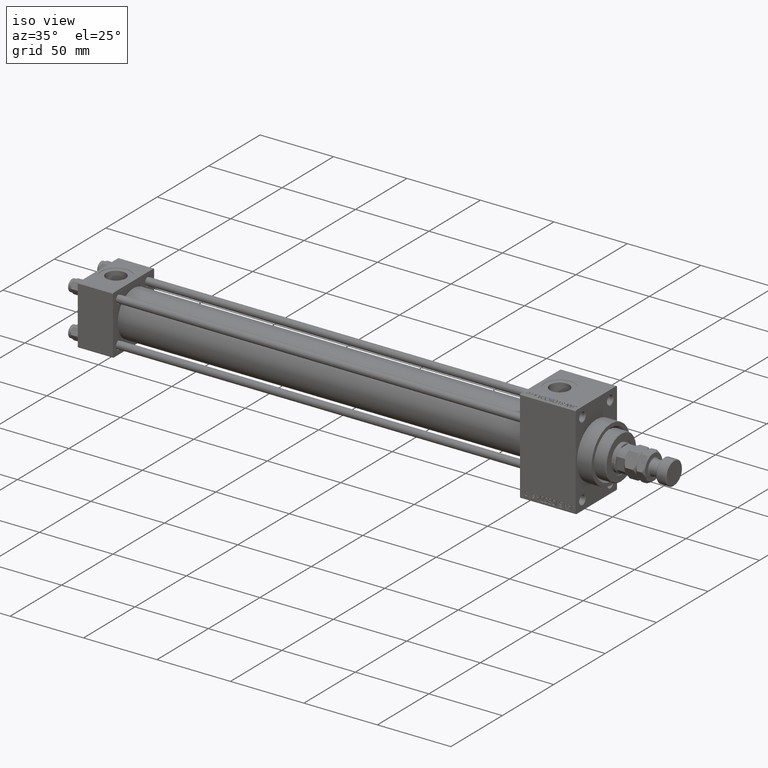
[diagram: clean part render]
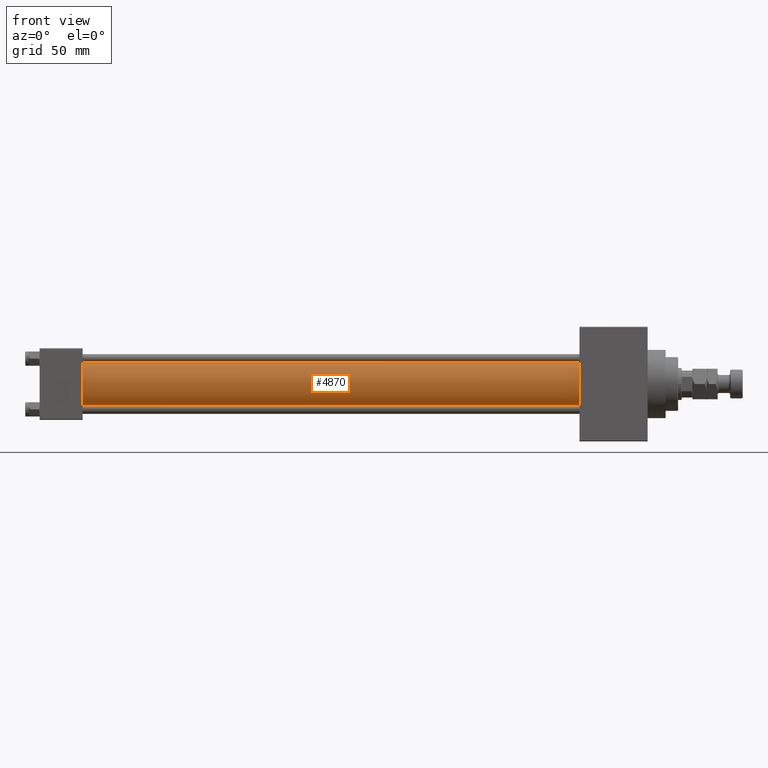
[diagram: tour spotlight — one face highlighted and labeled with its STEP entity id]
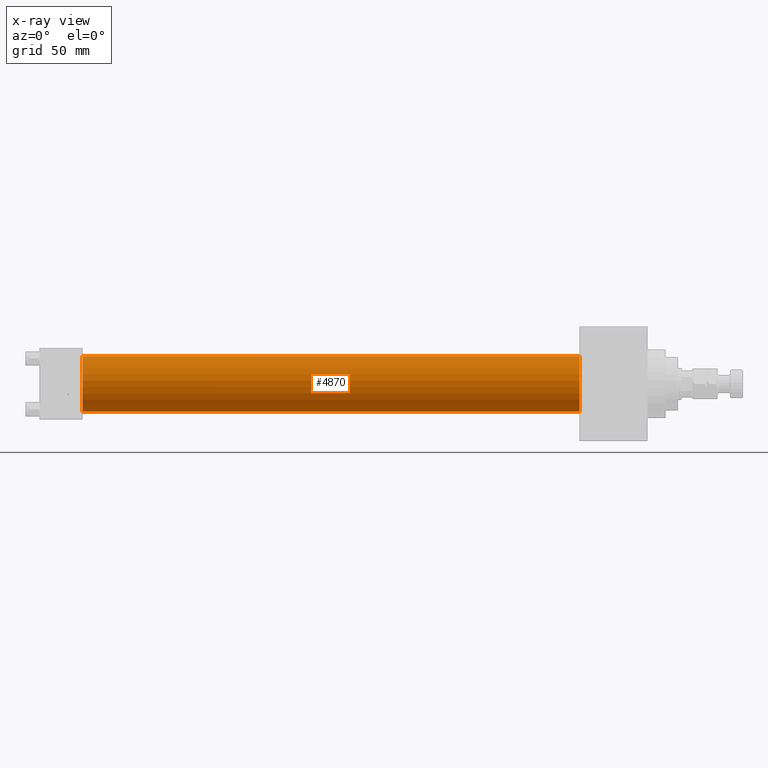
[diagram: x-ray of the same camera — body ghosted, this tour face saturated]
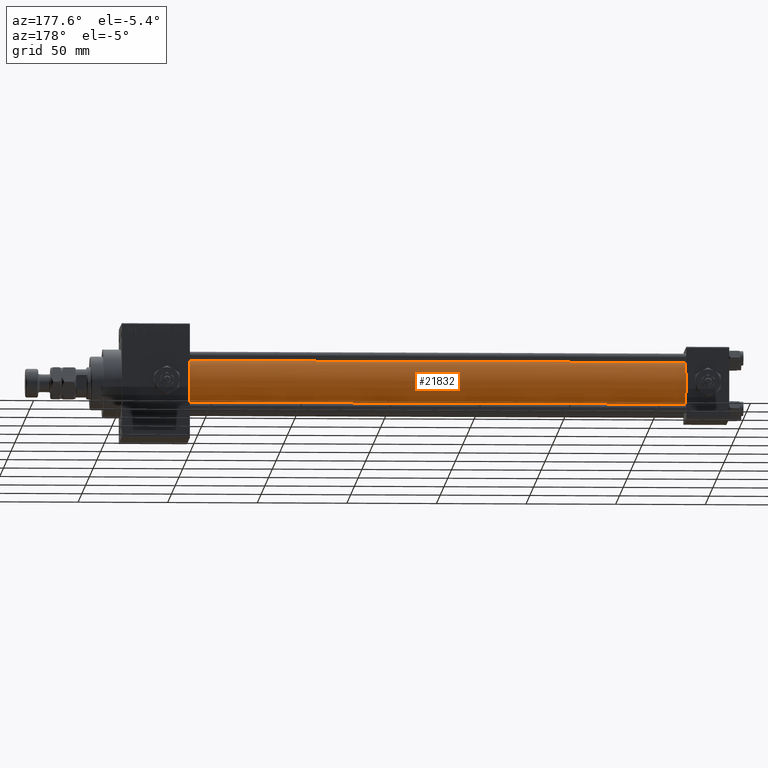
[diagram: tour spotlight — one face highlighted and labeled with its STEP entity id]
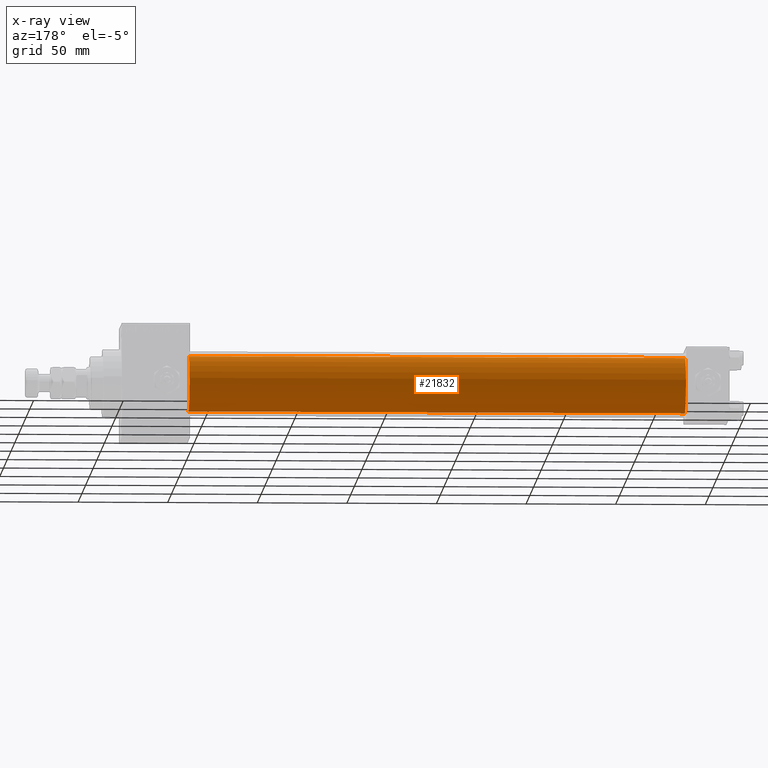
[diagram: x-ray of the same camera — body ghosted, this tour face saturated]
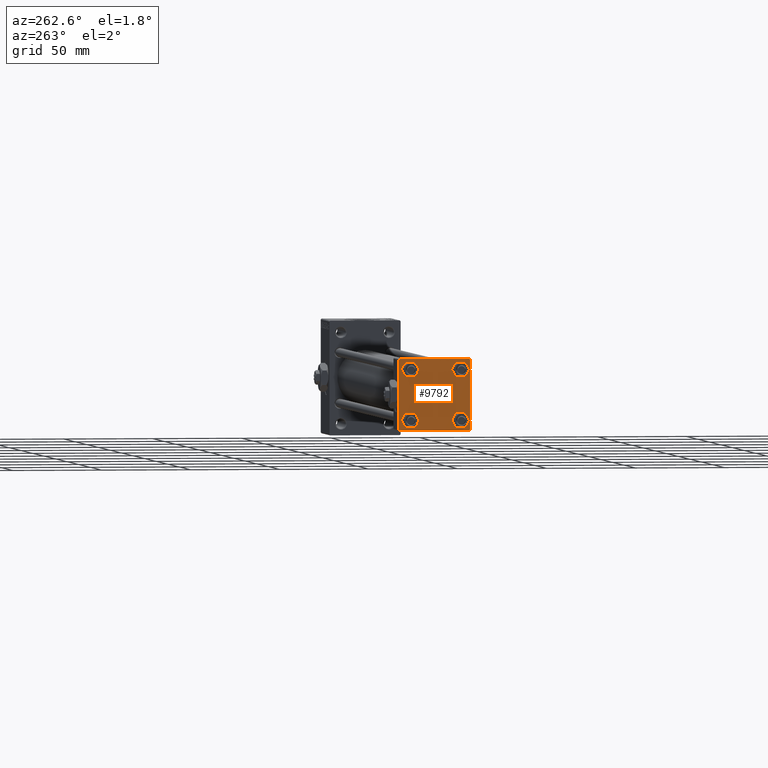
[diagram: tour spotlight — one face highlighted and labeled with its STEP entity id]
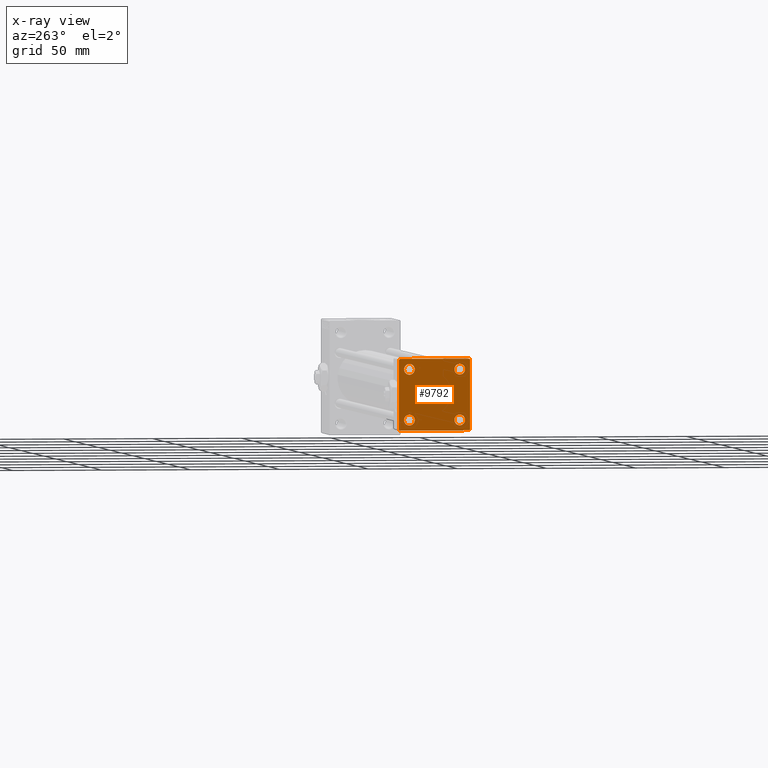
[diagram: x-ray of the same camera — body ghosted, this tour face saturated]
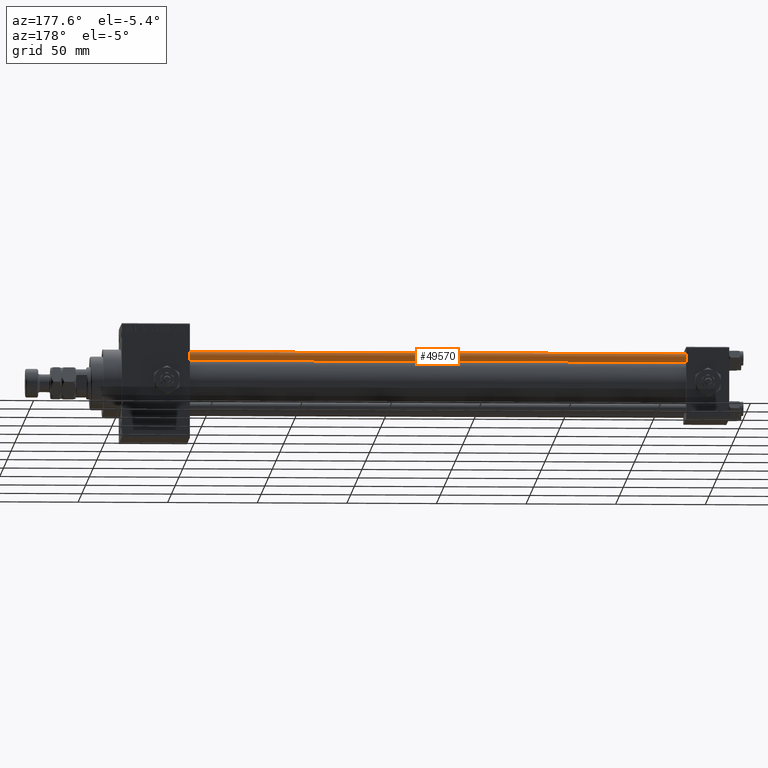
[diagram: tour spotlight — one face highlighted and labeled with its STEP entity id]
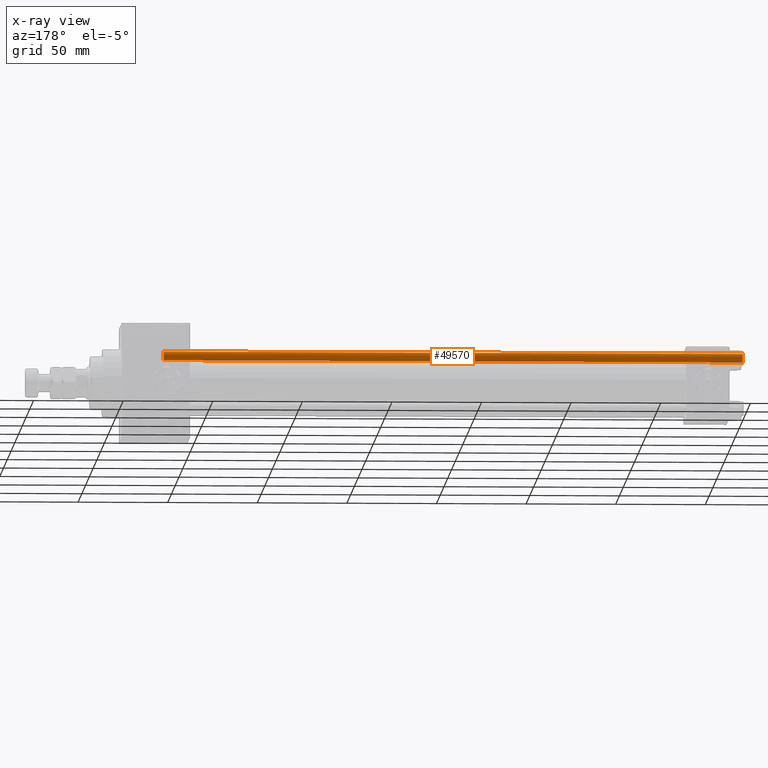
[diagram: x-ray of the same camera — body ghosted, this tour face saturated]
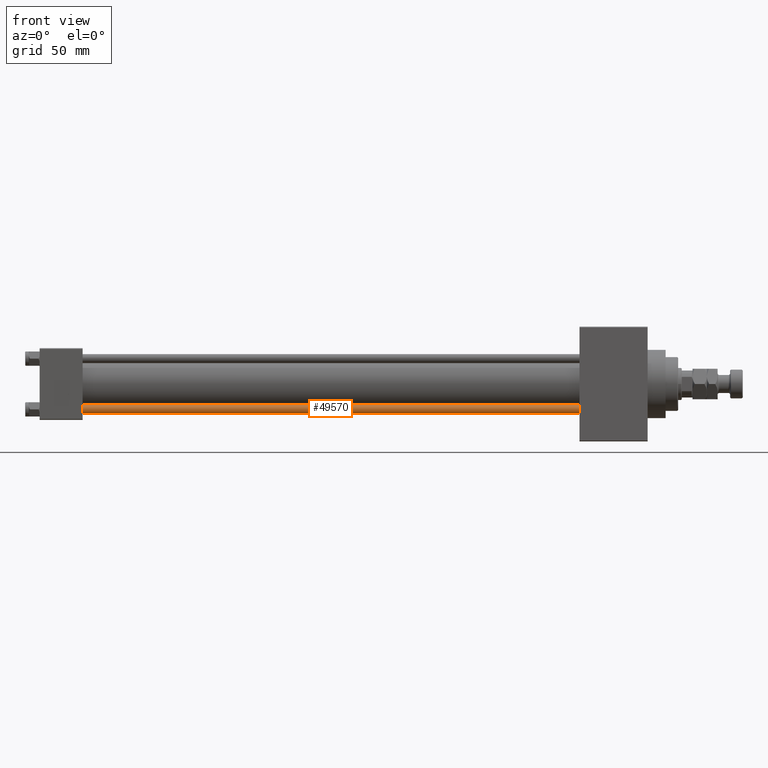
[diagram: tour spotlight — one face highlighted and labeled with its STEP entity id]
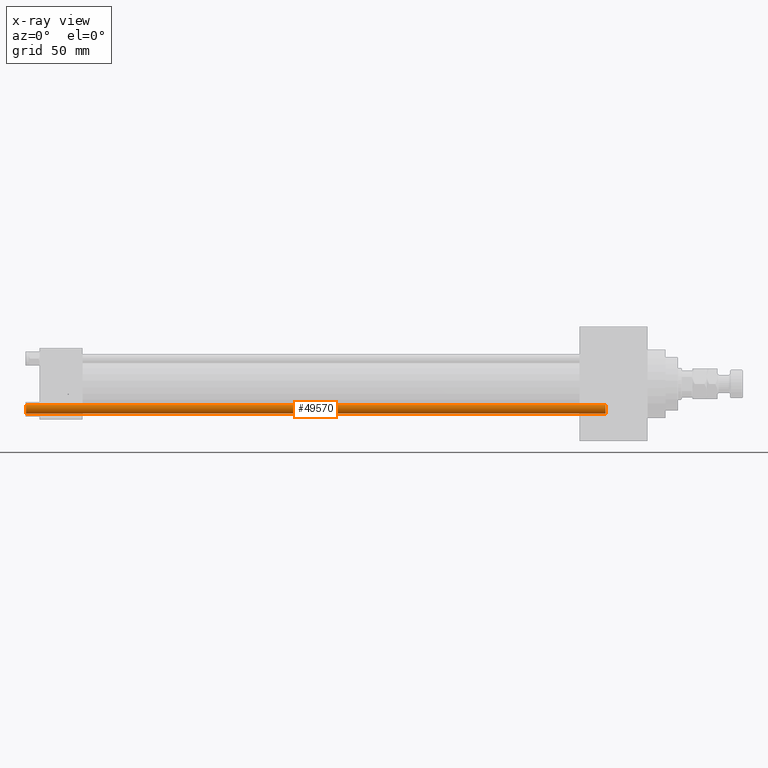
[diagram: x-ray of the same camera — body ghosted, this tour face saturated]
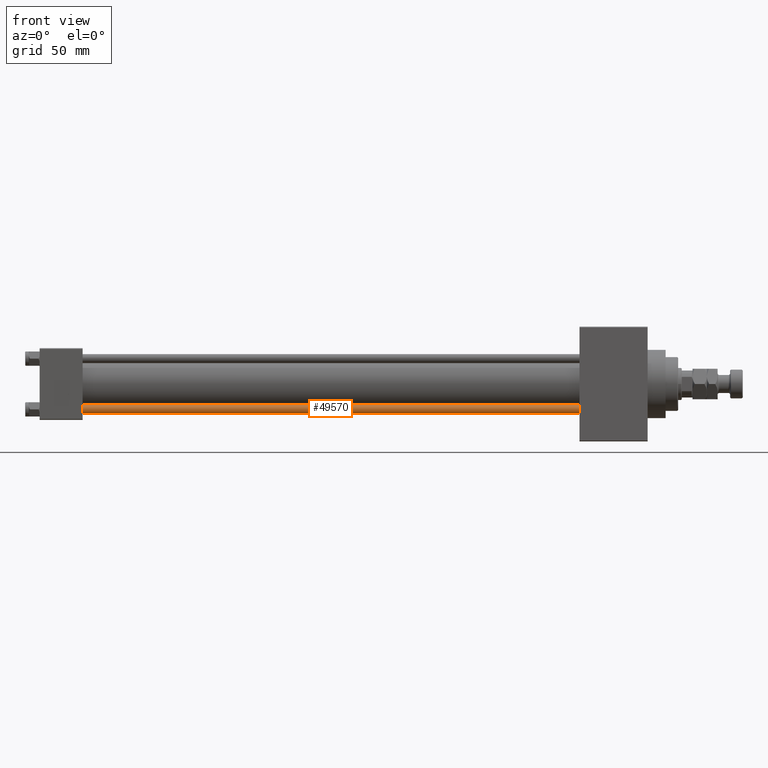
[diagram: tour spotlight — one face highlighted and labeled with its STEP entity id]
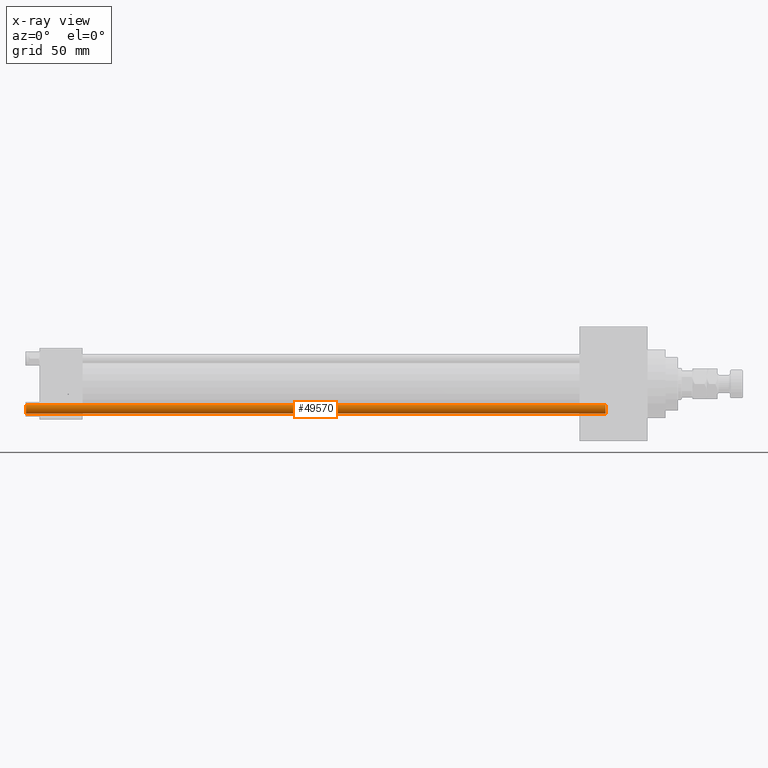
[diagram: x-ray of the same camera — body ghosted, this tour face saturated]
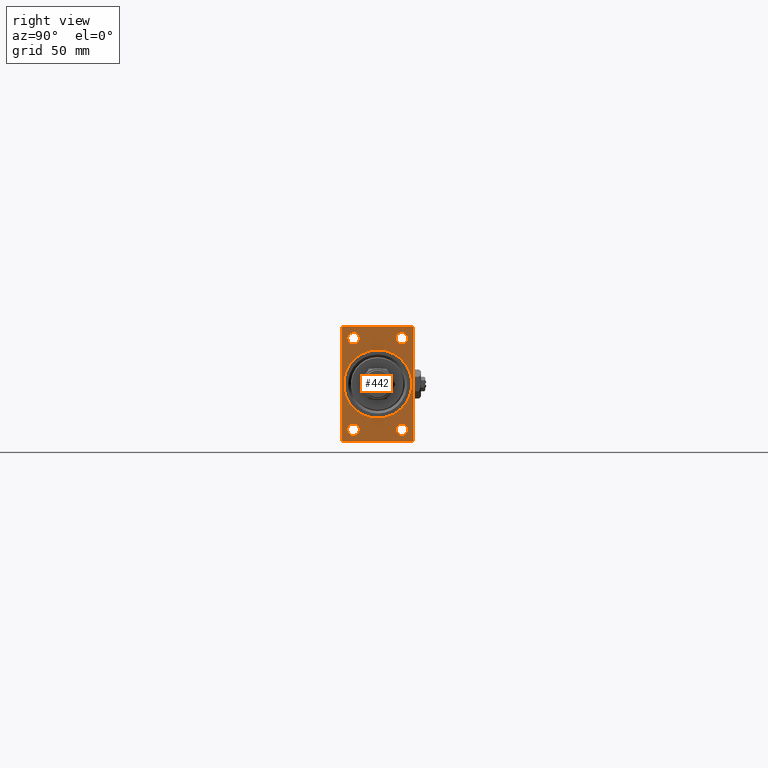
[diagram: tour spotlight — one face highlighted and labeled with its STEP entity id]
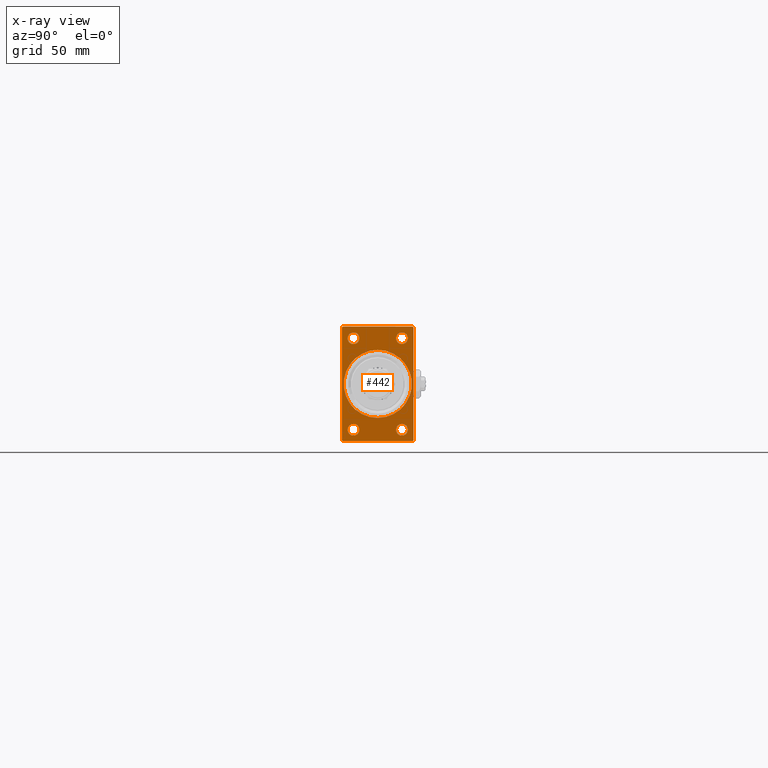
[diagram: x-ray of the same camera — body ghosted, this tour face saturated]
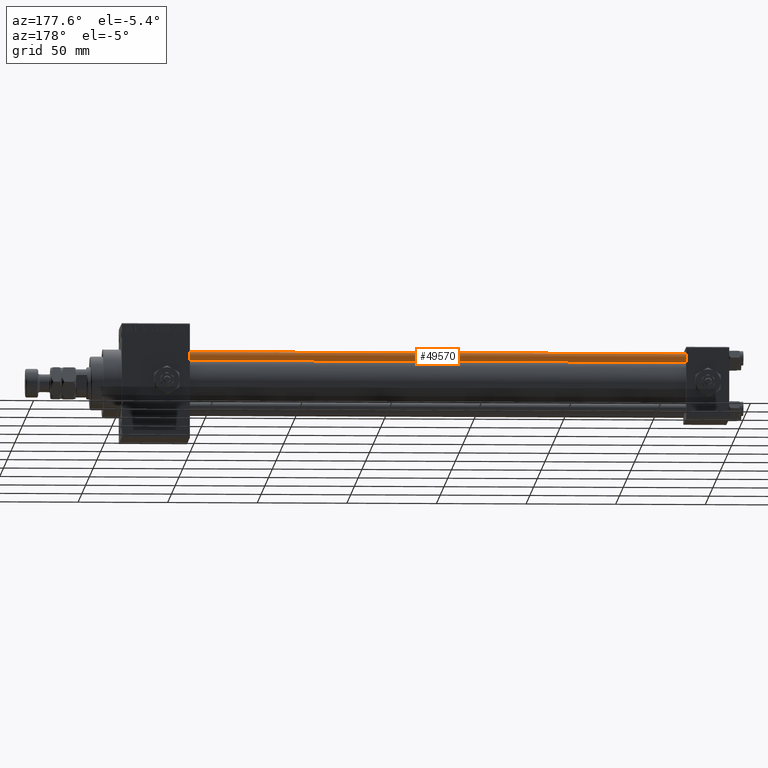
[diagram: tour spotlight — one face highlighted and labeled with its STEP entity id]
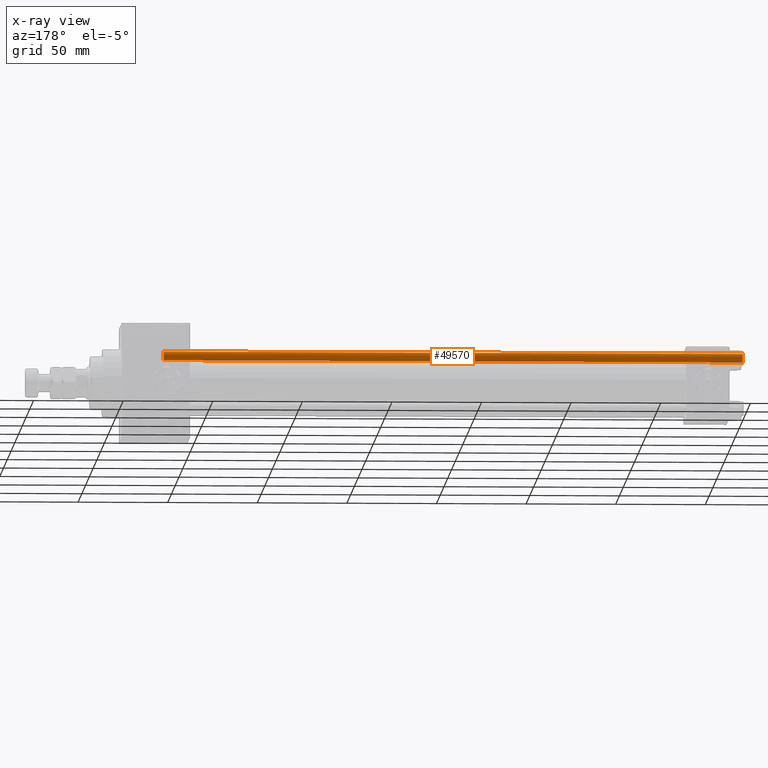
[diagram: x-ray of the same camera — body ghosted, this tour face saturated]
A machine part: a face-by-face anatomy tour. The part has 1252 B-rep faces; the first image is the clean iso view, then the 8 largest visible faces are spotlighted one at a time (largest first), each with its STEP entity span.

Face 1 — front view, entity #4870. An x-ray twin of the same camera follows (body ghosted, this face saturated) — the face is partly hidden behind the body. In plain terms, the highlighted cylindrical surface (edge-blend (fillet) strip) has radius 15.5 mm, axis along (-1, -0, -0).
Definition (entity closure, byte-faithful):
#836 = ORIENTED_EDGE ( 'NONE', *, *, #17133, .F. ) ;
#1991 = CARTESIAN_POINT ( 'NONE',  ( 301.0000000000000568, -7.038826752868131828E-16, -15.50000000000000000 ) ) ;
#3447 = FACE_OUTER_BOUND ( 'NONE', #32945, .T. ) ;
#3565 = DIRECTION ( 'NONE',  ( 0.000000000000000000, 0.000000000000000000, -1.000000000000000000 ) ) ;
#4757 = CARTESIAN_POINT ( 'NONE',  ( 24.00000000000002132, -2.602085213965210642E-15, 0.000000000000000000 ) ) ;
#4870 = ADVANCED_FACE ( 'NONE', ( #3447 ), #50635, .T. ) ;
#7968 = DIRECTION ( 'NONE',  ( -1.000000000000000000, -0.000000000000000000, -0.000000000000000000 ) ) ;
#8542 = AXIS2_PLACEMENT_3D ( 'NONE', #23053, #38705, #3565 ) ;
#10532 = VECTOR ( 'NONE', #7968, 1000.000000000000000 ) ;
#11026 = EDGE_CURVE ( 'NONE', #45008, #19777, #37999, .T. ) ;
#15848 = AXIS2_PLACEMENT_3D ( 'NONE', #30640, #34746, #46288 ) ;
#17133 = EDGE_CURVE ( 'NONE', #19777, #38577, #39108, .T. ) ;
#18615 = CARTESIAN_POINT ( 'NONE',  ( 301.0000000000000568, -2.602085213965210642E-15, 15.50000000000000000 ) ) ;
#19777 = VERTEX_POINT ( 'NONE', #1991 ) ;
#20279 = CARTESIAN_POINT ( 'NONE',  ( 24.00000000000002132, -2.602085213965210642E-15, 15.50000000000000000 ) ) ;
#23053 = CARTESIAN_POINT ( 'NONE',  ( 301.0000000000000568, -2.602085213965210642E-15, 0.000000000000000000 ) ) ;
#23353 = AXIS2_PLACEMENT_3D ( 'NONE', #4757, #23741, #32195 ) ;
#23707 = DIRECTION ( 'NONE',  ( -1.000000000000000000, -0.000000000000000000, -0.000000000000000000 ) ) ;
#23741 = DIRECTION ( 'NONE',  ( 1.000000000000000000, 0.000000000000000000, 0.000000000000000000 ) ) ;
#25800 = CIRCLE ( 'NONE', #23353, 15.50000000000000000 ) ;
#29878 = VERTEX_POINT ( 'NONE', #20279 ) ;
#30575 = CARTESIAN_POINT ( 'NONE',  ( 24.00000000000002132, -7.038826752868131828E-16, -15.50000000000000000 ) ) ;
#30640 = CARTESIAN_POINT ( 'NONE',  ( 301.0000000000000568, -2.602085213965210642E-15, 0.000000000000000000 ) ) ;
#32052 = LINE ( 'NONE', #32304, #10532 ) ;
#32195 = DIRECTION ( 'NONE',  ( 0.000000000000000000, 0.000000000000000000, 1.000000000000000000 ) ) ;
#32259 = EDGE_CURVE ( 'NONE', #29878, #38577, #25800, .T. ) ;
#32304 = CARTESIAN_POINT ( 'NONE',  ( 301.0000000000000568, -2.602085213965210642E-15, 15.50000000000000000 ) ) ;
#32945 = EDGE_LOOP ( 'NONE', ( #836, #33886, #35875, #38323 ) ) ;
#33886 = ORIENTED_EDGE ( 'NONE', *, *, #11026, .F. ) ;
#34746 = DIRECTION ( 'NONE',  ( -1.000000000000000000, -0.000000000000000000, -0.000000000000000000 ) ) ;
#35875 = ORIENTED_EDGE ( 'NONE', *, *, #43781, .T. ) ;
#37999 = CIRCLE ( 'NONE', #8542, 15.50000000000000000 ) ;
#38323 = ORIENTED_EDGE ( 'NONE', *, *, #32259, .T. ) ;
#38577 = VERTEX_POINT ( 'NONE', #30575 ) ;
#38705 = DIRECTION ( 'NONE',  ( 1.000000000000000000, 0.000000000000000000, 0.000000000000000000 ) ) ;
#39108 = LINE ( 'NONE', #43201, #47277 ) ;
#43201 = CARTESIAN_POINT ( 'NONE',  ( 301.0000000000000568, -7.038826752868131828E-16, -15.50000000000000000 ) ) ;
#43781 = EDGE_CURVE ( 'NONE', #45008, #29878, #32052, .T. ) ;
#45008 = VERTEX_POINT ( 'NONE', #18615 ) ;
#46288 = DIRECTION ( 'NONE',  ( 0.000000000000000000, 0.000000000000000000, 1.000000000000000000 ) ) ;
#47277 = VECTOR ( 'NONE', #23707, 1000.000000000000000 ) ;
#50635 = CYLINDRICAL_SURFACE ( 'NONE', #15848, 15.50000000000000000 ) ;

Face 2 — auxiliary view, entity #21832. An x-ray twin of the same camera follows (body ghosted, this face saturated) — the face is partly hidden behind the body. In plain terms, the highlighted cylindrical surface (edge-blend (fillet) strip) has radius 15.5 mm, axis along (-1, -0, -0).
Definition (entity closure, byte-faithful):
#331 = ORIENTED_EDGE ( 'NONE', *, *, #9285, .F. ) ;
#1991 = CARTESIAN_POINT ( 'NONE',  ( 301.0000000000000568, -7.038826752868131828E-16, -15.50000000000000000 ) ) ;
#4230 = AXIS2_PLACEMENT_3D ( 'NONE', #35036, #8097, #7334 ) ;
#4451 = CIRCLE ( 'NONE', #33113, 15.50000000000000000 ) ;
#4695 = EDGE_LOOP ( 'NONE', ( #331, #32340, #42356, #24268 ) ) ;
#7334 = DIRECTION ( 'NONE',  ( 0.000000000000000000, 0.000000000000000000, 1.000000000000000000 ) ) ;
#7968 = DIRECTION ( 'NONE',  ( -1.000000000000000000, -0.000000000000000000, -0.000000000000000000 ) ) ;
#8097 = DIRECTION ( 'NONE',  ( -1.000000000000000000, -0.000000000000000000, -0.000000000000000000 ) ) ;
#9285 = EDGE_CURVE ( 'NONE', #19777, #45008, #12564, .T. ) ;
#9974 = DIRECTION ( 'NONE',  ( 0.000000000000000000, 0.000000000000000000, 1.000000000000000000 ) ) ;
#10532 = VECTOR ( 'NONE', #7968, 1000.000000000000000 ) ;
#12564 = CIRCLE ( 'NONE', #25666, 15.50000000000000000 ) ;
#17133 = EDGE_CURVE ( 'NONE', #19777, #38577, #39108, .T. ) ;
#18615 = CARTESIAN_POINT ( 'NONE',  ( 301.0000000000000568, -2.602085213965210642E-15, 15.50000000000000000 ) ) ;
#19777 = VERTEX_POINT ( 'NONE', #1991 ) ;
#20279 = CARTESIAN_POINT ( 'NONE',  ( 24.00000000000002132, -2.602085213965210642E-15, 15.50000000000000000 ) ) ;
#21832 = ADVANCED_FACE ( 'NONE', ( #27076 ), #23486, .T. ) ;
#21984 = CARTESIAN_POINT ( 'NONE',  ( 301.0000000000000568, -2.602085213965210642E-15, 0.000000000000000000 ) ) ;
#23486 = CYLINDRICAL_SURFACE ( 'NONE', #4230, 15.50000000000000000 ) ;
#23707 = DIRECTION ( 'NONE',  ( -1.000000000000000000, -0.000000000000000000, -0.000000000000000000 ) ) ;
#24268 = ORIENTED_EDGE ( 'NONE', *, *, #43781, .F. ) ;
#25666 = AXIS2_PLACEMENT_3D ( 'NONE', #21984, #37880, #36871 ) ;
#27076 = FACE_OUTER_BOUND ( 'NONE', #4695, .T. ) ;
#29468 = CARTESIAN_POINT ( 'NONE',  ( 24.00000000000002132, -2.602085213965210642E-15, 0.000000000000000000 ) ) ;
#29878 = VERTEX_POINT ( 'NONE', #20279 ) ;
#30575 = CARTESIAN_POINT ( 'NONE',  ( 24.00000000000002132, -7.038826752868131828E-16, -15.50000000000000000 ) ) ;
#31061 = EDGE_CURVE ( 'NONE', #38577, #29878, #4451, .T. ) ;
#32052 = LINE ( 'NONE', #32304, #10532 ) ;
#32304 = CARTESIAN_POINT ( 'NONE',  ( 301.0000000000000568, -2.602085213965210642E-15, 15.50000000000000000 ) ) ;
#32340 = ORIENTED_EDGE ( 'NONE', *, *, #17133, .T. ) ;
#33113 = AXIS2_PLACEMENT_3D ( 'NONE', #29468, #45100, #9974 ) ;
#35036 = CARTESIAN_POINT ( 'NONE',  ( 301.0000000000000568, -2.602085213965210642E-15, 0.000000000000000000 ) ) ;
#36871 = DIRECTION ( 'NONE',  ( 0.000000000000000000, 0.000000000000000000, -1.000000000000000000 ) ) ;
#37880 = DIRECTION ( 'NONE',  ( 1.000000000000000000, 0.000000000000000000, 0.000000000000000000 ) ) ;
#38577 = VERTEX_POINT ( 'NONE', #30575 ) ;
#39108 = LINE ( 'NONE', #43201, #47277 ) ;
#42356 = ORIENTED_EDGE ( 'NONE', *, *, #31061, .T. ) ;
#43201 = CARTESIAN_POINT ( 'NONE',  ( 301.0000000000000568, -7.038826752868131828E-16, -15.50000000000000000 ) ) ;
#43781 = EDGE_CURVE ( 'NONE', #45008, #29878, #32052, .T. ) ;
#45008 = VERTEX_POINT ( 'NONE', #18615 ) ;
#45100 = DIRECTION ( 'NONE',  ( 1.000000000000000000, 0.000000000000000000, 0.000000000000000000 ) ) ;
#47277 = VECTOR ( 'NONE', #23707, 1000.000000000000000 ) ;

Face 3 — auxiliary view, entity #9792. An x-ray twin of the same camera follows (body ghosted, this face saturated) — the face is partly hidden behind the body. In plain terms, the highlighted planar face has unit normal (-1, 0, 0).
Definition (entity closure, byte-faithful):
#497 = CARTESIAN_POINT ( 'NONE',  ( 0.000000000000000000, -19.50000000000000711, -20.00000000000000000 ) ) ;
#585 = CIRCLE ( 'NONE', #35796, 2.999999999999983569 ) ;
#799 = EDGE_CURVE ( 'NONE', #24070, #10458, #37455, .T. ) ;
#986 = EDGE_LOOP ( 'NONE', ( #24951, #33200, #45081, #36986, #22593, #16493, #20021, #9196 ) ) ;
#1297 = FACE_BOUND ( 'NONE', #6522, .T. ) ;
#1551 = PLANE ( 'NONE',  #1889 ) ;
#1889 = AXIS2_PLACEMENT_3D ( 'NONE', #28991, #44893, #36443 ) ;
#2142 = CARTESIAN_POINT ( 'NONE',  ( 0.000000000000000000, 20.00000000000000000, 19.49999999999999289 ) ) ;
#3118 = LINE ( 'NONE', #23624, #34968 ) ;
#3433 = DIRECTION ( 'NONE',  ( 1.000000000000000000, 0.000000000000000000, 0.000000000000000000 ) ) ;
#3563 = AXIS2_PLACEMENT_3D ( 'NONE', #27033, #3433, #7536 ) ;
#4249 = CARTESIAN_POINT ( 'NONE',  ( 0.000000000000000000, -14.14999999999999503, -17.15000000000000924 ) ) ;
#4657 = FACE_BOUND ( 'NONE', #47209, .T. ) ;
#4881 = DIRECTION ( 'NONE',  ( -0.000000000000000000, -0.7071067811865524577, -0.7071067811865426878 ) ) ;
#4987 = CARTESIAN_POINT ( 'NONE',  ( 0.000000000000000000, 14.14999999999999858, 14.15000000000000036 ) ) ;
#5298 = DIRECTION ( 'NONE',  ( 0.000000000000000000, 8.673617379884036705E-17, -1.000000000000000000 ) ) ;
#5379 = CARTESIAN_POINT ( 'NONE',  ( -0.000000000000000000, 19.74999999999986855, -19.75000000000014211 ) ) ;
#5405 = EDGE_CURVE ( 'NONE', #35408, #32641, #9277, .T. ) ;
#5826 = ORIENTED_EDGE ( 'NONE', *, *, #6301, .T. ) ;
#6297 = VERTEX_POINT ( 'NONE', #34732 ) ;
#6301 = EDGE_CURVE ( 'NONE', #6297, #6473, #31428, .T. ) ;
#6473 = VERTEX_POINT ( 'NONE', #45446 ) ;
#6522 = EDGE_LOOP ( 'NONE', ( #23332, #39667 ) ) ;
#6626 = CARTESIAN_POINT ( 'NONE',  ( 0.000000000000000000, -14.14999999999999503, 14.15000000000000391 ) ) ;
#6874 = VECTOR ( 'NONE', #4881, 1000.000000000000000 ) ;
#7536 = DIRECTION ( 'NONE',  ( 0.000000000000000000, 0.000000000000000000, 1.000000000000000000 ) ) ;
#7663 = DIRECTION ( 'NONE',  ( 1.000000000000000000, 0.000000000000000000, 0.000000000000000000 ) ) ;
#7946 = VERTEX_POINT ( 'NONE', #50554 ) ;
#8660 = DIRECTION ( 'NONE',  ( 0.000000000000000000, -1.000000000000000000, -2.602085213965210149E-16 ) ) ;
#8700 = ORIENTED_EDGE ( 'NONE', *, *, #16930, .T. ) ;
#9196 = ORIENTED_EDGE ( 'NONE', *, *, #37017, .T. ) ;
#9277 = CIRCLE ( 'NONE', #37933, 2.999999999999983569 ) ;
#9611 = DIRECTION ( 'NONE',  ( 0.000000000000000000, 0.000000000000000000, 1.000000000000000000 ) ) ;
#9792 = ADVANCED_FACE ( 'NONE', ( #35946, #16707, #1297, #4657, #36189 ), #1551, .T. ) ;
#10270 = DIRECTION ( 'NONE',  ( -0.000000000000000000, 0.7071067811865500152, 0.7071067811865451302 ) ) ;
#10458 = VERTEX_POINT ( 'NONE', #28849 ) ;
#10519 = ORIENTED_EDGE ( 'NONE', *, *, #49360, .T. ) ;
#11140 = CIRCLE ( 'NONE', #48795, 2.999999999999983569 ) ;
#11322 = CARTESIAN_POINT ( 'NONE',  ( 0.000000000000000000, 19.50000000000000711, -20.00000000000000711 ) ) ;
#11709 = CARTESIAN_POINT ( 'NONE',  ( 0.000000000000000000, -20.00000000000000355, 19.49999999999998224 ) ) ;
#11941 = DIRECTION ( 'NONE',  ( 0.000000000000000000, 0.000000000000000000, 1.000000000000000000 ) ) ;
#12889 = VECTOR ( 'NONE', #47082, 1000.000000000000000 ) ;
#13278 = LINE ( 'NONE', #14036, #30867 ) ;
#14036 = CARTESIAN_POINT ( 'NONE',  ( -0.000000000000000000, 19.75000000000013500, 19.74999999999986144 ) ) ;
#14122 = CARTESIAN_POINT ( 'NONE',  ( -0.000000000000000000, -19.74999999999992539, 19.75000000000006395 ) ) ;
#15015 = CARTESIAN_POINT ( 'NONE',  ( 0.000000000000000000, 20.00000000000000000, -19.50000000000002132 ) ) ;
#15309 = VECTOR ( 'NONE', #8660, 1000.000000000000000 ) ;
#15585 = EDGE_CURVE ( 'NONE', #6473, #6297, #11140, .T. ) ;
#15827 = ORIENTED_EDGE ( 'NONE', *, *, #5405, .T. ) ;
#15874 = CARTESIAN_POINT ( 'NONE',  ( 0.000000000000000000, 14.14999999999999858, -14.15000000000000036 ) ) ;
#15933 = DIRECTION ( 'NONE',  ( 0.000000000000000000, 0.000000000000000000, -1.000000000000000000 ) ) ;
#16493 = ORIENTED_EDGE ( 'NONE', *, *, #799, .T. ) ;
#16620 = CIRCLE ( 'NONE', #50177, 2.999999999999983569 ) ;
#16707 = FACE_BOUND ( 'NONE', #40590, .T. ) ;
#16930 = EDGE_CURVE ( 'NONE', #7946, #50314, #21056, .T. ) ;
#17280 = CARTESIAN_POINT ( 'NONE',  ( 0.000000000000000000, -14.14999999999999503, 11.15000000000002345 ) ) ;
#17291 = VECTOR ( 'NONE', #10270, 1000.000000000000114 ) ;
#19163 = CARTESIAN_POINT ( 'NONE',  ( 0.000000000000000000, 14.14999999999999858, -14.15000000000000036 ) ) ;
#19719 = DIRECTION ( 'NONE',  ( 1.000000000000000000, 0.000000000000000000, 0.000000000000000000 ) ) ;
#20021 = ORIENTED_EDGE ( 'NONE', *, *, #40045, .F. ) ;
#21056 = CIRCLE ( 'NONE', #39077, 3.000000000000004441 ) ;
#21448 = ORIENTED_EDGE ( 'NONE', *, *, #15585, .T. ) ;
#21972 = DIRECTION ( 'NONE',  ( 0.000000000000000000, 0.7071067811865425767, -0.7071067811865525687 ) ) ;
#22470 = VERTEX_POINT ( 'NONE', #11322 ) ;
#22491 = DIRECTION ( 'NONE',  ( 0.000000000000000000, 0.000000000000000000, 1.000000000000000000 ) ) ;
#22520 = DIRECTION ( 'NONE',  ( 1.000000000000000000, 0.000000000000000000, 0.000000000000000000 ) ) ;
#22593 = ORIENTED_EDGE ( 'NONE', *, *, #34954, .F. ) ;
#23245 = ORIENTED_EDGE ( 'NONE', *, *, #31987, .T. ) ;
#23257 = DIRECTION ( 'NONE',  ( 1.000000000000000000, 0.000000000000000000, 0.000000000000000000 ) ) ;
#23332 = ORIENTED_EDGE ( 'NONE', *, *, #38038, .T. ) ;
#23624 = CARTESIAN_POINT ( 'NONE',  ( 0.000000000000000000, 20.00000000000000000, 20.00000000000000000 ) ) ;
#23889 = EDGE_CURVE ( 'NONE', #46858, #28281, #16620, .T. ) ;
#24070 = VERTEX_POINT ( 'NONE', #11709 ) ;
#24951 = ORIENTED_EDGE ( 'NONE', *, *, #36547, .T. ) ;
#25055 = LINE ( 'NONE', #29408, #15309 ) ;
#25130 = CARTESIAN_POINT ( 'NONE',  ( 0.000000000000000000, -19.75000000000020961, -19.74999999999979394 ) ) ;
#26138 = CARTESIAN_POINT ( 'NONE',  ( 0.000000000000000000, -14.14999999999999503, -14.15000000000000391 ) ) ;
#26505 = VERTEX_POINT ( 'NONE', #15015 ) ;
#27033 = CARTESIAN_POINT ( 'NONE',  ( 0.000000000000000000, 14.14999999999999858, 14.15000000000000036 ) ) ;
#27119 = VERTEX_POINT ( 'NONE', #497 ) ;
#27331 = LINE ( 'NONE', #35790, #12889 ) ;
#28281 = VERTEX_POINT ( 'NONE', #30670 ) ;
#28826 = CARTESIAN_POINT ( 'NONE',  ( 0.000000000000000000, 19.50000000000000000, 20.00000000000000000 ) ) ;
#28849 = CARTESIAN_POINT ( 'NONE',  ( 0.000000000000000000, -19.49999999999999289, 19.99999999999998934 ) ) ;
#28991 = CARTESIAN_POINT ( 'NONE',  ( 0.000000000000000000, 0.000000000000000000, 0.000000000000000000 ) ) ;
#29226 = LINE ( 'NONE', #25130, #44539 ) ;
#29383 = CARTESIAN_POINT ( 'NONE',  ( 0.000000000000000000, -14.14999999999999503, -14.15000000000000391 ) ) ;
#29408 = CARTESIAN_POINT ( 'NONE',  ( 0.000000000000000000, 20.00000000000000000, 20.00000000000000000 ) ) ;
#29838 = EDGE_CURVE ( 'NONE', #26505, #22470, #40022, .T. ) ;
#29897 = AXIS2_PLACEMENT_3D ( 'NONE', #26138, #7663, #38955 ) ;
#29929 = EDGE_CURVE ( 'NONE', #27119, #45777, #29226, .T. ) ;
#30244 = DIRECTION ( 'NONE',  ( 0.000000000000000000, -0.7071067811865401342, 0.7071067811865549002 ) ) ;
#30670 = CARTESIAN_POINT ( 'NONE',  ( 0.000000000000000000, 14.14999999999999858, -11.15000000000001812 ) ) ;
#30867 = VECTOR ( 'NONE', #21972, 999.9999999999998863 ) ;
#31000 = CARTESIAN_POINT ( 'NONE',  ( 0.000000000000000000, 14.14999999999999858, -17.14999999999998437 ) ) ;
#31428 = CIRCLE ( 'NONE', #3563, 2.999999999999983569 ) ;
#31568 = EDGE_LOOP ( 'NONE', ( #10519, #15827 ) ) ;
#31987 = EDGE_CURVE ( 'NONE', #50314, #7946, #36412, .T. ) ;
#32641 = VERTEX_POINT ( 'NONE', #48780 ) ;
#33200 = ORIENTED_EDGE ( 'NONE', *, *, #29838, .T. ) ;
#33215 = DIRECTION ( 'NONE',  ( 0.000000000000000000, 0.000000000000000000, 1.000000000000000000 ) ) ;
#34210 = DIRECTION ( 'NONE',  ( 1.000000000000000000, 0.000000000000000000, 0.000000000000000000 ) ) ;
#34732 = CARTESIAN_POINT ( 'NONE',  ( 0.000000000000000000, 14.14999999999999858, 11.15000000000001990 ) ) ;
#34954 = EDGE_CURVE ( 'NONE', #24070, #45777, #40931, .T. ) ;
#34968 = VECTOR ( 'NONE', #15933, 1000.000000000000000 ) ;
#35408 = VERTEX_POINT ( 'NONE', #17280 ) ;
#35790 = CARTESIAN_POINT ( 'NONE',  ( 0.000000000000000000, 20.00000000000000000, -20.00000000000000711 ) ) ;
#35796 = AXIS2_PLACEMENT_3D ( 'NONE', #19163, #23257, #22491 ) ;
#35946 = FACE_BOUND ( 'NONE', #31568, .T. ) ;
#36189 = FACE_OUTER_BOUND ( 'NONE', #986, .T. ) ;
#36412 = CIRCLE ( 'NONE', #29897, 3.000000000000004441 ) ;
#36443 = DIRECTION ( 'NONE',  ( -0.000000000000000000, 0.000000000000000000, 1.000000000000000000 ) ) ;
#36528 = VECTOR ( 'NONE', #5298, 1000.000000000000000 ) ;
#36547 = EDGE_CURVE ( 'NONE', #48655, #26505, #3118, .T. ) ;
#36575 = DIRECTION ( 'NONE',  ( 1.000000000000000000, 0.000000000000000000, 0.000000000000000000 ) ) ;
#36986 = ORIENTED_EDGE ( 'NONE', *, *, #29929, .T. ) ;
#37017 = EDGE_CURVE ( 'NONE', #43295, #48655, #13278, .T. ) ;
#37455 = LINE ( 'NONE', #14122, #17291 ) ;
#37933 = AXIS2_PLACEMENT_3D ( 'NONE', #38046, #34210, #9611 ) ;
#38038 = EDGE_CURVE ( 'NONE', #28281, #46858, #585, .T. ) ;
#38046 = CARTESIAN_POINT ( 'NONE',  ( 0.000000000000000000, -14.14999999999999503, 14.15000000000000391 ) ) ;
#38955 = DIRECTION ( 'NONE',  ( 0.000000000000000000, 0.000000000000000000, 1.000000000000000000 ) ) ;
#39077 = AXIS2_PLACEMENT_3D ( 'NONE', #29383, #36575, #33215 ) ;
#39667 = ORIENTED_EDGE ( 'NONE', *, *, #23889, .T. ) ;
#40022 = LINE ( 'NONE', #5379, #6874 ) ;
#40045 = EDGE_CURVE ( 'NONE', #43295, #10458, #25055, .T. ) ;
#40590 = EDGE_LOOP ( 'NONE', ( #8700, #23245 ) ) ;
#40931 = LINE ( 'NONE', #43773, #36528 ) ;
#40996 = EDGE_CURVE ( 'NONE', #22470, #27119, #27331, .T. ) ;
#43224 = DIRECTION ( 'NONE',  ( 1.000000000000000000, 0.000000000000000000, 0.000000000000000000 ) ) ;
#43295 = VERTEX_POINT ( 'NONE', #28826 ) ;
#43300 = DIRECTION ( 'NONE',  ( 0.000000000000000000, 0.000000000000000000, 1.000000000000000000 ) ) ;
#43773 = CARTESIAN_POINT ( 'NONE',  ( 0.000000000000000000, -20.00000000000000355, 19.99999999999998934 ) ) ;
#44539 = VECTOR ( 'NONE', #30244, 1000.000000000000000 ) ;
#44893 = DIRECTION ( 'NONE',  ( -1.000000000000000000, 0.000000000000000000, -0.000000000000000000 ) ) ;
#45081 = ORIENTED_EDGE ( 'NONE', *, *, #40996, .T. ) ;
#45446 = CARTESIAN_POINT ( 'NONE',  ( 0.000000000000000000, 14.14999999999999858, 17.14999999999998437 ) ) ;
#45619 = DIRECTION ( 'NONE',  ( 0.000000000000000000, 0.000000000000000000, 1.000000000000000000 ) ) ;
#45777 = VERTEX_POINT ( 'NONE', #48380 ) ;
#46373 = AXIS2_PLACEMENT_3D ( 'NONE', #6626, #22520, #45619 ) ;
#46858 = VERTEX_POINT ( 'NONE', #31000 ) ;
#47082 = DIRECTION ( 'NONE',  ( 0.000000000000000000, -1.000000000000000000, 1.734723475976807094E-16 ) ) ;
#47209 = EDGE_LOOP ( 'NONE', ( #21448, #5826 ) ) ;
#48380 = CARTESIAN_POINT ( 'NONE',  ( 0.000000000000000000, -20.00000000000000000, -19.49999999999999645 ) ) ;
#48655 = VERTEX_POINT ( 'NONE', #2142 ) ;
#48780 = CARTESIAN_POINT ( 'NONE',  ( 0.000000000000000000, -14.14999999999999503, 17.14999999999998792 ) ) ;
#48795 = AXIS2_PLACEMENT_3D ( 'NONE', #4987, #43224, #11941 ) ;
#48839 = CIRCLE ( 'NONE', #46373, 2.999999999999983569 ) ;
#49360 = EDGE_CURVE ( 'NONE', #32641, #35408, #48839, .T. ) ;
#50177 = AXIS2_PLACEMENT_3D ( 'NONE', #15874, #19719, #43300 ) ;
#50314 = VERTEX_POINT ( 'NONE', #4249 ) ;
#50554 = CARTESIAN_POINT ( 'NONE',  ( 0.000000000000000000, -14.14999999999999503, -11.15000000000000036 ) ) ;

Face 4 — auxiliary view, entity #49570. An x-ray twin of the same camera follows (body ghosted, this face saturated) — the face is partly hidden behind the body. In plain terms, the highlighted cylindrical surface (edge-blend (fillet) strip) has radius 2.5 mm, axis along (1, -0, 0).
Definition (entity closure, byte-faithful):
#1695 = FACE_OUTER_BOUND ( 'NONE', #15140, .T. ) ;
#3855 = VECTOR ( 'NONE', #16017, 1000.000000000000000 ) ;
#6759 = CIRCLE ( 'NONE', #35439, 2.500000000000000000 ) ;
#6830 = VECTOR ( 'NONE', #40508, 1000.000000000000000 ) ;
#8942 = VERTEX_POINT ( 'NONE', #33840 ) ;
#9546 = VERTEX_POINT ( 'NONE', #26733 ) ;
#9909 = CYLINDRICAL_SURFACE ( 'NONE', #38194, 2.500000000000000000 ) ;
#10925 = DIRECTION ( 'NONE',  ( -0.000000000000000000, -0.000000000000000000, 1.000000000000000000 ) ) ;
#11420 = CARTESIAN_POINT ( 'NONE',  ( -2.500000000000000000, 0.000000000000000000, 324.0000000000000000 ) ) ;
#12324 = LINE ( 'NONE', #28721, #6830 ) ;
#13771 = CARTESIAN_POINT ( 'NONE',  ( 0.000000000000000000, 0.000000000000000000, 324.0000000000000000 ) ) ;
#14017 = CARTESIAN_POINT ( 'NONE',  ( -2.500000000000000000, 0.000000000000000000, 0.4999999999998894218 ) ) ;
#15140 = EDGE_LOOP ( 'NONE', ( #43623, #44228, #44166, #47616 ) ) ;
#15276 = LINE ( 'NONE', #11420, #3855 ) ;
#15304 = DIRECTION ( 'NONE',  ( 1.000000000000000000, 0.000000000000000000, 0.000000000000000000 ) ) ;
#16017 = DIRECTION ( 'NONE',  ( -0.000000000000000000, -0.000000000000000000, -1.000000000000000000 ) ) ;
#17104 = EDGE_CURVE ( 'NONE', #8942, #40151, #15276, .T. ) ;
#21787 = EDGE_CURVE ( 'NONE', #25194, #40151, #41906, .T. ) ;
#25194 = VERTEX_POINT ( 'NONE', #42238 ) ;
#26733 = CARTESIAN_POINT ( 'NONE',  ( 2.500000000000000000, 3.061616997868383141E-16, 323.5000000000000568 ) ) ;
#27009 = EDGE_CURVE ( 'NONE', #8942, #9546, #6759, .T. ) ;
#28721 = CARTESIAN_POINT ( 'NONE',  ( 2.500000000000000000, 3.061616997868383141E-16, 324.0000000000000000 ) ) ;
#28758 = CARTESIAN_POINT ( 'NONE',  ( 0.000000000000000000, 0.000000000000000000, 323.5000000000000568 ) ) ;
#29406 = DIRECTION ( 'NONE',  ( -0.000000000000000000, -0.000000000000000000, -1.000000000000000000 ) ) ;
#29830 = EDGE_CURVE ( 'NONE', #9546, #25194, #12324, .T. ) ;
#33840 = CARTESIAN_POINT ( 'NONE',  ( -2.500000000000000000, 0.000000000000000000, 323.5000000000000568 ) ) ;
#34003 = DIRECTION ( 'NONE',  ( -1.000000000000000000, 0.000000000000000000, 0.000000000000000000 ) ) ;
#34508 = CARTESIAN_POINT ( 'NONE',  ( 0.000000000000000000, 0.000000000000000000, 0.4999999999998894218 ) ) ;
#35439 = AXIS2_PLACEMENT_3D ( 'NONE', #28758, #44648, #40803 ) ;
#36163 = AXIS2_PLACEMENT_3D ( 'NONE', #34508, #10925, #15304 ) ;
#38194 = AXIS2_PLACEMENT_3D ( 'NONE', #13771, #29406, #34003 ) ;
#40151 = VERTEX_POINT ( 'NONE', #14017 ) ;
#40508 = DIRECTION ( 'NONE',  ( -0.000000000000000000, -0.000000000000000000, -1.000000000000000000 ) ) ;
#40803 = DIRECTION ( 'NONE',  ( 1.000000000000000000, 0.000000000000000000, 0.000000000000000000 ) ) ;
#41906 = CIRCLE ( 'NONE', #36163, 2.500000000000000000 ) ;
#42238 = CARTESIAN_POINT ( 'NONE',  ( 2.500000000000000000, 3.061616997868383141E-16, 0.4999999999998894218 ) ) ;
#43623 = ORIENTED_EDGE ( 'NONE', *, *, #27009, .T. ) ;
#44166 = ORIENTED_EDGE ( 'NONE', *, *, #21787, .T. ) ;
#44228 = ORIENTED_EDGE ( 'NONE', *, *, #29830, .T. ) ;
#44648 = DIRECTION ( 'NONE',  ( 0.000000000000000000, 0.000000000000000000, -1.000000000000000000 ) ) ;
#47616 = ORIENTED_EDGE ( 'NONE', *, *, #17104, .F. ) ;
#49570 = ADVANCED_FACE ( 'NONE', ( #1695 ), #9909, .T. ) ;

Face 5 — front view, entity #49570. An x-ray twin of the same camera follows (body ghosted, this face saturated) — the face is partly hidden behind the body. In plain terms, the highlighted cylindrical surface (edge-blend (fillet) strip) has radius 2.5 mm, axis along (1, 0, 0).
Definition (entity closure, byte-faithful):
#1695 = FACE_OUTER_BOUND ( 'NONE', #15140, .T. ) ;
#3855 = VECTOR ( 'NONE', #16017, 1000.000000000000000 ) ;
#6759 = CIRCLE ( 'NONE', #35439, 2.500000000000000000 ) ;
#6830 = VECTOR ( 'NONE', #40508, 1000.000000000000000 ) ;
#8942 = VERTEX_POINT ( 'NONE', #33840 ) ;
#9546 = VERTEX_POINT ( 'NONE', #26733 ) ;
#9909 = CYLINDRICAL_SURFACE ( 'NONE', #38194, 2.500000000000000000 ) ;
#10925 = DIRECTION ( 'NONE',  ( -0.000000000000000000, -0.000000000000000000, 1.000000000000000000 ) ) ;
#11420 = CARTESIAN_POINT ( 'NONE',  ( -2.500000000000000000, 0.000000000000000000, 324.0000000000000000 ) ) ;
#12324 = LINE ( 'NONE', #28721, #6830 ) ;
#13771 = CARTESIAN_POINT ( 'NONE',  ( 0.000000000000000000, 0.000000000000000000, 324.0000000000000000 ) ) ;
#14017 = CARTESIAN_POINT ( 'NONE',  ( -2.500000000000000000, 0.000000000000000000, 0.4999999999998894218 ) ) ;
#15140 = EDGE_LOOP ( 'NONE', ( #43623, #44228, #44166, #47616 ) ) ;
#15276 = LINE ( 'NONE', #11420, #3855 ) ;
#15304 = DIRECTION ( 'NONE',  ( 1.000000000000000000, 0.000000000000000000, 0.000000000000000000 ) ) ;
#16017 = DIRECTION ( 'NONE',  ( -0.000000000000000000, -0.000000000000000000, -1.000000000000000000 ) ) ;
#17104 = EDGE_CURVE ( 'NONE', #8942, #40151, #15276, .T. ) ;
#21787 = EDGE_CURVE ( 'NONE', #25194, #40151, #41906, .T. ) ;
#25194 = VERTEX_POINT ( 'NONE', #42238 ) ;
#26733 = CARTESIAN_POINT ( 'NONE',  ( 2.500000000000000000, 3.061616997868383141E-16, 323.5000000000000568 ) ) ;
#27009 = EDGE_CURVE ( 'NONE', #8942, #9546, #6759, .T. ) ;
#28721 = CARTESIAN_POINT ( 'NONE',  ( 2.500000000000000000, 3.061616997868383141E-16, 324.0000000000000000 ) ) ;
#28758 = CARTESIAN_POINT ( 'NONE',  ( 0.000000000000000000, 0.000000000000000000, 323.5000000000000568 ) ) ;
#29406 = DIRECTION ( 'NONE',  ( -0.000000000000000000, -0.000000000000000000, -1.000000000000000000 ) ) ;
#29830 = EDGE_CURVE ( 'NONE', #9546, #25194, #12324, .T. ) ;
#33840 = CARTESIAN_POINT ( 'NONE',  ( -2.500000000000000000, 0.000000000000000000, 323.5000000000000568 ) ) ;
#34003 = DIRECTION ( 'NONE',  ( -1.000000000000000000, 0.000000000000000000, 0.000000000000000000 ) ) ;
#34508 = CARTESIAN_POINT ( 'NONE',  ( 0.000000000000000000, 0.000000000000000000, 0.4999999999998894218 ) ) ;
#35439 = AXIS2_PLACEMENT_3D ( 'NONE', #28758, #44648, #40803 ) ;
#36163 = AXIS2_PLACEMENT_3D ( 'NONE', #34508, #10925, #15304 ) ;
#38194 = AXIS2_PLACEMENT_3D ( 'NONE', #13771, #29406, #34003 ) ;
#40151 = VERTEX_POINT ( 'NONE', #14017 ) ;
#40508 = DIRECTION ( 'NONE',  ( -0.000000000000000000, -0.000000000000000000, -1.000000000000000000 ) ) ;
#40803 = DIRECTION ( 'NONE',  ( 1.000000000000000000, 0.000000000000000000, 0.000000000000000000 ) ) ;
#41906 = CIRCLE ( 'NONE', #36163, 2.500000000000000000 ) ;
#42238 = CARTESIAN_POINT ( 'NONE',  ( 2.500000000000000000, 3.061616997868383141E-16, 0.4999999999998894218 ) ) ;
#43623 = ORIENTED_EDGE ( 'NONE', *, *, #27009, .T. ) ;
#44166 = ORIENTED_EDGE ( 'NONE', *, *, #21787, .T. ) ;
#44228 = ORIENTED_EDGE ( 'NONE', *, *, #29830, .T. ) ;
#44648 = DIRECTION ( 'NONE',  ( 0.000000000000000000, 0.000000000000000000, -1.000000000000000000 ) ) ;
#47616 = ORIENTED_EDGE ( 'NONE', *, *, #17104, .F. ) ;
#49570 = ADVANCED_FACE ( 'NONE', ( #1695 ), #9909, .T. ) ;

Face 6 — front view, entity #49570. An x-ray twin of the same camera follows (body ghosted, this face saturated) — the face is partly hidden behind the body. In plain terms, the highlighted cylindrical surface (edge-blend (fillet) strip) has radius 2.5 mm, axis along (-1, 0, 0).
Definition (entity closure, byte-faithful):
#1695 = FACE_OUTER_BOUND ( 'NONE', #15140, .T. ) ;
#3855 = VECTOR ( 'NONE', #16017, 1000.000000000000000 ) ;
#6759 = CIRCLE ( 'NONE', #35439, 2.500000000000000000 ) ;
#6830 = VECTOR ( 'NONE', #40508, 1000.000000000000000 ) ;
#8942 = VERTEX_POINT ( 'NONE', #33840 ) ;
#9546 = VERTEX_POINT ( 'NONE', #26733 ) ;
#9909 = CYLINDRICAL_SURFACE ( 'NONE', #38194, 2.500000000000000000 ) ;
#10925 = DIRECTION ( 'NONE',  ( -0.000000000000000000, -0.000000000000000000, 1.000000000000000000 ) ) ;
#11420 = CARTESIAN_POINT ( 'NONE',  ( -2.500000000000000000, 0.000000000000000000, 324.0000000000000000 ) ) ;
#12324 = LINE ( 'NONE', #28721, #6830 ) ;
#13771 = CARTESIAN_POINT ( 'NONE',  ( 0.000000000000000000, 0.000000000000000000, 324.0000000000000000 ) ) ;
#14017 = CARTESIAN_POINT ( 'NONE',  ( -2.500000000000000000, 0.000000000000000000, 0.4999999999998894218 ) ) ;
#15140 = EDGE_LOOP ( 'NONE', ( #43623, #44228, #44166, #47616 ) ) ;
#15276 = LINE ( 'NONE', #11420, #3855 ) ;
#15304 = DIRECTION ( 'NONE',  ( 1.000000000000000000, 0.000000000000000000, 0.000000000000000000 ) ) ;
#16017 = DIRECTION ( 'NONE',  ( -0.000000000000000000, -0.000000000000000000, -1.000000000000000000 ) ) ;
#17104 = EDGE_CURVE ( 'NONE', #8942, #40151, #15276, .T. ) ;
#21787 = EDGE_CURVE ( 'NONE', #25194, #40151, #41906, .T. ) ;
#25194 = VERTEX_POINT ( 'NONE', #42238 ) ;
#26733 = CARTESIAN_POINT ( 'NONE',  ( 2.500000000000000000, 3.061616997868383141E-16, 323.5000000000000568 ) ) ;
#27009 = EDGE_CURVE ( 'NONE', #8942, #9546, #6759, .T. ) ;
#28721 = CARTESIAN_POINT ( 'NONE',  ( 2.500000000000000000, 3.061616997868383141E-16, 324.0000000000000000 ) ) ;
#28758 = CARTESIAN_POINT ( 'NONE',  ( 0.000000000000000000, 0.000000000000000000, 323.5000000000000568 ) ) ;
#29406 = DIRECTION ( 'NONE',  ( -0.000000000000000000, -0.000000000000000000, -1.000000000000000000 ) ) ;
#29830 = EDGE_CURVE ( 'NONE', #9546, #25194, #12324, .T. ) ;
#33840 = CARTESIAN_POINT ( 'NONE',  ( -2.500000000000000000, 0.000000000000000000, 323.5000000000000568 ) ) ;
#34003 = DIRECTION ( 'NONE',  ( -1.000000000000000000, 0.000000000000000000, 0.000000000000000000 ) ) ;
#34508 = CARTESIAN_POINT ( 'NONE',  ( 0.000000000000000000, 0.000000000000000000, 0.4999999999998894218 ) ) ;
#35439 = AXIS2_PLACEMENT_3D ( 'NONE', #28758, #44648, #40803 ) ;
#36163 = AXIS2_PLACEMENT_3D ( 'NONE', #34508, #10925, #15304 ) ;
#38194 = AXIS2_PLACEMENT_3D ( 'NONE', #13771, #29406, #34003 ) ;
#40151 = VERTEX_POINT ( 'NONE', #14017 ) ;
#40508 = DIRECTION ( 'NONE',  ( -0.000000000000000000, -0.000000000000000000, -1.000000000000000000 ) ) ;
#40803 = DIRECTION ( 'NONE',  ( 1.000000000000000000, 0.000000000000000000, 0.000000000000000000 ) ) ;
#41906 = CIRCLE ( 'NONE', #36163, 2.500000000000000000 ) ;
#42238 = CARTESIAN_POINT ( 'NONE',  ( 2.500000000000000000, 3.061616997868383141E-16, 0.4999999999998894218 ) ) ;
#43623 = ORIENTED_EDGE ( 'NONE', *, *, #27009, .T. ) ;
#44166 = ORIENTED_EDGE ( 'NONE', *, *, #21787, .T. ) ;
#44228 = ORIENTED_EDGE ( 'NONE', *, *, #29830, .T. ) ;
#44648 = DIRECTION ( 'NONE',  ( 0.000000000000000000, 0.000000000000000000, -1.000000000000000000 ) ) ;
#47616 = ORIENTED_EDGE ( 'NONE', *, *, #17104, .F. ) ;
#49570 = ADVANCED_FACE ( 'NONE', ( #1695 ), #9909, .T. ) ;

Face 7 — right view, entity #442. An x-ray twin of the same camera follows (body ghosted, this face saturated) — the face is partly hidden behind the body. In plain terms, the highlighted planar face has unit normal (-1, 0, 0).
Definition (entity closure, byte-faithful):
#442 = ADVANCED_FACE ( 'NONE', ( #48364, #8891, #32726, #13238, #44514, #9389 ), #20174, .F. ) ;
#1127 = DIRECTION ( 'NONE',  ( 0.000000000000000000, 0.000000000000000000, 1.000000000000000000 ) ) ;
#1334 = ORIENTED_EDGE ( 'NONE', *, *, #17059, .T. ) ;
#1832 = CARTESIAN_POINT ( 'NONE',  ( 339.0000000000000000, 13.49999999999999822, 28.74999999999997868 ) ) ;
#2818 = DIRECTION ( 'NONE',  ( 0.000000000000000000, 0.000000000000000000, 1.000000000000000000 ) ) ;
#2936 = EDGE_CURVE ( 'NONE', #23738, #14236, #5254, .T. ) ;
#2957 = AXIS2_PLACEMENT_3D ( 'NONE', #7895, #46885, #27133 ) ;
#3012 = VERTEX_POINT ( 'NONE', #49090 ) ;
#3047 = DIRECTION ( 'NONE',  ( 0.000000000000000000, -0.7071067811865081598, 0.7071067811865867636 ) ) ;
#3301 = EDGE_CURVE ( 'NONE', #7790, #23634, #12465, .T. ) ;
#3525 = CARTESIAN_POINT ( 'NONE',  ( 339.0000000000000000, -13.50000000000000178, 22.25000000000002842 ) ) ;
#3871 = VERTEX_POINT ( 'NONE', #4762 ) ;
#4497 = DIRECTION ( 'NONE',  ( 1.000000000000000000, 0.000000000000000000, 0.000000000000000000 ) ) ;
#4681 = CARTESIAN_POINT ( 'NONE',  ( 339.0000000000000000, 13.49999999999999822, 25.50000000000000355 ) ) ;
#4762 = CARTESIAN_POINT ( 'NONE',  ( 339.0000000000000000, 19.50000000000000000, 32.00000000000000000 ) ) ;
#5254 = LINE ( 'NONE', #27586, #21446 ) ;
#5519 = VERTEX_POINT ( 'NONE', #17185 ) ;
#6165 = CARTESIAN_POINT ( 'NONE',  ( 339.0000000000000000, 13.49999999999999822, -25.50000000000000000 ) ) ;
#6446 = EDGE_CURVE ( 'NONE', #3871, #23738, #49277, .T. ) ;
#6851 = VERTEX_POINT ( 'NONE', #9376 ) ;
#7060 = AXIS2_PLACEMENT_3D ( 'NONE', #22901, #34439, #15486 ) ;
#7305 = DIRECTION ( 'NONE',  ( -1.000000000000000000, -0.000000000000000000, -0.000000000000000000 ) ) ;
#7717 = DIRECTION ( 'NONE',  ( 0.000000000000000000, 0.7071067811865524577, -0.7071067811865426878 ) ) ;
#7790 = VERTEX_POINT ( 'NONE', #1832 ) ;
#7893 = CARTESIAN_POINT ( 'NONE',  ( 339.0000000000000000, -20.00000000000000000, 31.49999999999993605 ) ) ;
#7895 = CARTESIAN_POINT ( 'NONE',  ( 339.0000000000000000, -13.50000000000000533, -25.49999999999999645 ) ) ;
#7990 = CARTESIAN_POINT ( 'NONE',  ( 339.0000000000000000, 0.000000000000000000, 0.000000000000000000 ) ) ;
#8891 = FACE_BOUND ( 'NONE', #47792, .T. ) ;
#8988 = EDGE_CURVE ( 'NONE', #42180, #38327, #50227, .T. ) ;
#9376 = CARTESIAN_POINT ( 'NONE',  ( 339.0000000000000000, -13.50000000000000533, -28.75000000000002487 ) ) ;
#9389 = FACE_OUTER_BOUND ( 'NONE', #45850, .T. ) ;
#10437 = EDGE_CURVE ( 'NONE', #22851, #3012, #42910, .T. ) ;
#11106 = DIRECTION ( 'NONE',  ( 0.000000000000000000, 0.000000000000000000, -1.000000000000000000 ) ) ;
#11313 = LINE ( 'NONE', #35150, #39771 ) ;
#11512 = LINE ( 'NONE', #15369, #30159 ) ;
#12465 = CIRCLE ( 'NONE', #44410, 3.249999999999975131 ) ;
#12719 = ORIENTED_EDGE ( 'NONE', *, *, #6446, .T. ) ;
#13238 = FACE_BOUND ( 'NONE', #17943, .T. ) ;
#13836 = CARTESIAN_POINT ( 'NONE',  ( 339.0000000000000000, 13.49999999999999822, -28.75000000000002842 ) ) ;
#14163 = CARTESIAN_POINT ( 'NONE',  ( 339.0000000000000000, 20.00000000000000000, 32.00000000000000000 ) ) ;
#14236 = VERTEX_POINT ( 'NONE', #7893 ) ;
#14974 = EDGE_CURVE ( 'NONE', #23634, #7790, #43093, .T. ) ;
#15034 = VECTOR ( 'NONE', #45706, 1000.000000000000000 ) ;
#15369 = CARTESIAN_POINT ( 'NONE',  ( 339.0000000000000000, 19.50000000000000000, 32.00000000000000000 ) ) ;
#15432 = VERTEX_POINT ( 'NONE', #33743 ) ;
#15486 = DIRECTION ( 'NONE',  ( 0.000000000000000000, 0.000000000000000000, 1.000000000000000000 ) ) ;
#15572 = CARTESIAN_POINT ( 'NONE',  ( 339.0000000000000000, -19.50000000000000000, -32.00000000000000000 ) ) ;
#15814 = VERTEX_POINT ( 'NONE', #30018 ) ;
#16050 = CARTESIAN_POINT ( 'NONE',  ( 339.0000000000000000, -20.00000000000000000, -31.50000000000000711 ) ) ;
#16749 = ORIENTED_EDGE ( 'NONE', *, *, #14974, .T. ) ;
#16823 = VECTOR ( 'NONE', #11106, 1000.000000000000000 ) ;
#17059 = EDGE_CURVE ( 'NONE', #15814, #6851, #41521, .T. ) ;
#17063 = ORIENTED_EDGE ( 'NONE', *, *, #22556, .T. ) ;
#17185 = CARTESIAN_POINT ( 'NONE',  ( 339.0000000000000000, 13.49999999999999822, -22.24999999999996803 ) ) ;
#17943 = EDGE_LOOP ( 'NONE', ( #16749, #36853 ) ) ;
#18506 = ORIENTED_EDGE ( 'NONE', *, *, #48645, .T. ) ;
#19143 = ORIENTED_EDGE ( 'NONE', *, *, #2936, .T. ) ;
#19457 = EDGE_CURVE ( 'NONE', #5519, #29037, #43332, .T. ) ;
#19600 = DIRECTION ( 'NONE',  ( -1.000000000000000000, -0.000000000000000000, -0.000000000000000000 ) ) ;
#19813 = VECTOR ( 'NONE', #7717, 1000.000000000000000 ) ;
#19934 = AXIS2_PLACEMENT_3D ( 'NONE', #42804, #35125, #31029 ) ;
#20174 = PLANE ( 'NONE',  #25446 ) ;
#20197 = VECTOR ( 'NONE', #40687, 1000.000000000000114 ) ;
#20217 = AXIS2_PLACEMENT_3D ( 'NONE', #42441, #7305, #50375 ) ;
#20324 = CARTESIAN_POINT ( 'NONE',  ( 339.0000000000000000, 20.00000000000000000, 31.49999999999994316 ) ) ;
#21281 = EDGE_LOOP ( 'NONE', ( #30542, #18506 ) ) ;
#21371 = LINE ( 'NONE', #40363, #29142 ) ;
#21446 = VECTOR ( 'NONE', #28341, 1000.000000000000114 ) ;
#22556 = EDGE_CURVE ( 'NONE', #41008, #50354, #38493, .T. ) ;
#22637 = AXIS2_PLACEMENT_3D ( 'NONE', #7990, #39510, #39270 ) ;
#22851 = VERTEX_POINT ( 'NONE', #42020 ) ;
#22901 = CARTESIAN_POINT ( 'NONE',  ( 339.0000000000000000, 13.49999999999999822, -25.50000000000000000 ) ) ;
#23634 = VERTEX_POINT ( 'NONE', #36675 ) ;
#23738 = VERTEX_POINT ( 'NONE', #31261 ) ;
#24018 = DIRECTION ( 'NONE',  ( -1.000000000000000000, 0.000000000000000000, -0.000000000000000000 ) ) ;
#24479 = CARTESIAN_POINT ( 'NONE',  ( 339.0000000000000000, -13.50000000000000178, 25.50000000000000355 ) ) ;
#25030 = CARTESIAN_POINT ( 'NONE',  ( 339.0000000000000000, 0.000000000000000000, 0.000000000000000000 ) ) ;
#25060 = CIRCLE ( 'NONE', #2957, 3.250000000000030642 ) ;
#25446 = AXIS2_PLACEMENT_3D ( 'NONE', #25030, #24018, #44024 ) ;
#25858 = CIRCLE ( 'NONE', #45517, 3.249999999999975131 ) ;
#26124 = AXIS2_PLACEMENT_3D ( 'NONE', #6165, #37186, #2818 ) ;
#26192 = ORIENTED_EDGE ( 'NONE', *, *, #48701, .T. ) ;
#27133 = DIRECTION ( 'NONE',  ( 0.000000000000000000, 0.000000000000000000, 1.000000000000000000 ) ) ;
#27168 = ORIENTED_EDGE ( 'NONE', *, *, #39241, .T. ) ;
#27524 = CIRCLE ( 'NONE', #7060, 3.250000000000030642 ) ;
#27586 = CARTESIAN_POINT ( 'NONE',  ( 339.0000000000000000, -20.00000000000000000, 31.49999999999993605 ) ) ;
#27759 = LINE ( 'NONE', #39546, #16823 ) ;
#27783 = DIRECTION ( 'NONE',  ( 0.000000000000000000, 0.000000000000000000, 1.000000000000000000 ) ) ;
#28341 = DIRECTION ( 'NONE',  ( -0.000000000000000000, -0.7071067811865474617, -0.7071067811865474617 ) ) ;
#28969 = CARTESIAN_POINT ( 'NONE',  ( 339.0000000000000000, 13.49999999999999822, 25.50000000000000355 ) ) ;
#29037 = VERTEX_POINT ( 'NONE', #13836 ) ;
#29142 = VECTOR ( 'NONE', #43971, 1000.000000000000000 ) ;
#29315 = VERTEX_POINT ( 'NONE', #41894 ) ;
#30018 = CARTESIAN_POINT ( 'NONE',  ( 339.0000000000000000, -13.50000000000000533, -22.24999999999996447 ) ) ;
#30159 = VECTOR ( 'NONE', #3047, 1000.000000000000000 ) ;
#30542 = ORIENTED_EDGE ( 'NONE', *, *, #8988, .T. ) ;
#30693 = EDGE_LOOP ( 'NONE', ( #40041, #39759 ) ) ;
#31029 = DIRECTION ( 'NONE',  ( 0.000000000000000000, 0.000000000000000000, 1.000000000000000000 ) ) ;
#31261 = CARTESIAN_POINT ( 'NONE',  ( 339.0000000000000000, -19.49999999999994316, 31.99999999999999289 ) ) ;
#32726 = FACE_BOUND ( 'NONE', #40406, .T. ) ;
#33720 = CARTESIAN_POINT ( 'NONE',  ( 339.0000000000000000, -13.50000000000000178, 28.74999999999997868 ) ) ;
#33743 = CARTESIAN_POINT ( 'NONE',  ( 339.0000000000000000, 19.49999999999994316, -32.00000000000000000 ) ) ;
#34087 = AXIS2_PLACEMENT_3D ( 'NONE', #4681, #35214, #43399 ) ;
#34439 = DIRECTION ( 'NONE',  ( -1.000000000000000000, -0.000000000000000000, -0.000000000000000000 ) ) ;
#34462 = ORIENTED_EDGE ( 'NONE', *, *, #39101, .T. ) ;
#35125 = DIRECTION ( 'NONE',  ( -1.000000000000000000, -0.000000000000000000, -0.000000000000000000 ) ) ;
#35150 = CARTESIAN_POINT ( 'NONE',  ( 339.0000000000000000, 20.00000000000000000, -32.00000000000000000 ) ) ;
#35214 = DIRECTION ( 'NONE',  ( -1.000000000000000000, -0.000000000000000000, -0.000000000000000000 ) ) ;
#35520 = EDGE_CURVE ( 'NONE', #29037, #5519, #27524, .T. ) ;
#35799 = CARTESIAN_POINT ( 'NONE',  ( 339.0000000000000000, 0.000000000000000000, 0.000000000000000000 ) ) ;
#36675 = CARTESIAN_POINT ( 'NONE',  ( 339.0000000000000000, 13.49999999999999822, 22.25000000000002842 ) ) ;
#36853 = ORIENTED_EDGE ( 'NONE', *, *, #3301, .T. ) ;
#37186 = DIRECTION ( 'NONE',  ( -1.000000000000000000, -0.000000000000000000, -0.000000000000000000 ) ) ;
#38193 = ORIENTED_EDGE ( 'NONE', *, *, #48071, .F. ) ;
#38247 = ORIENTED_EDGE ( 'NONE', *, *, #44075, .T. ) ;
#38327 = VERTEX_POINT ( 'NONE', #33720 ) ;
#38493 = LINE ( 'NONE', #50275, #19813 ) ;
#39101 = EDGE_CURVE ( 'NONE', #6851, #15814, #25060, .T. ) ;
#39241 = EDGE_CURVE ( 'NONE', #15432, #29315, #44529, .T. ) ;
#39270 = DIRECTION ( 'NONE',  ( 0.000000000000000000, 0.000000000000000000, -1.000000000000000000 ) ) ;
#39510 = DIRECTION ( 'NONE',  ( 1.000000000000000000, 0.000000000000000000, 0.000000000000000000 ) ) ;
#39546 = CARTESIAN_POINT ( 'NONE',  ( 339.0000000000000000, 20.00000000000000000, 32.00000000000000000 ) ) ;
#39759 = ORIENTED_EDGE ( 'NONE', *, *, #10437, .F. ) ;
#39771 = VECTOR ( 'NONE', #46698, 1000.000000000000000 ) ;
#40041 = ORIENTED_EDGE ( 'NONE', *, *, #50080, .F. ) ;
#40363 = CARTESIAN_POINT ( 'NONE',  ( 339.0000000000000000, -20.00000000000000000, 31.99999999999999289 ) ) ;
#40406 = EDGE_LOOP ( 'NONE', ( #43043, #50035 ) ) ;
#40643 = DIRECTION ( 'NONE',  ( 0.000000000000000000, 0.000000000000000000, -1.000000000000000000 ) ) ;
#40687 = DIRECTION ( 'NONE',  ( -0.000000000000000000, 0.7071067811865474617, 0.7071067811865474617 ) ) ;
#41008 = VERTEX_POINT ( 'NONE', #16050 ) ;
#41521 = CIRCLE ( 'NONE', #20217, 3.250000000000030642 ) ;
#41894 = CARTESIAN_POINT ( 'NONE',  ( 339.0000000000000000, 20.00000000000000000, -31.49999999999994316 ) ) ;
#42020 = CARTESIAN_POINT ( 'NONE',  ( 339.0000000000000000, 2.326828918379970970E-15, -19.00000000000000000 ) ) ;
#42180 = VERTEX_POINT ( 'NONE', #3525 ) ;
#42441 = CARTESIAN_POINT ( 'NONE',  ( 339.0000000000000000, -13.50000000000000533, -25.49999999999999645 ) ) ;
#42804 = CARTESIAN_POINT ( 'NONE',  ( 339.0000000000000000, -13.50000000000000178, 25.50000000000000355 ) ) ;
#42910 = CIRCLE ( 'NONE', #50262, 19.00000000000000000 ) ;
#43043 = ORIENTED_EDGE ( 'NONE', *, *, #35520, .T. ) ;
#43093 = CIRCLE ( 'NONE', #34087, 3.249999999999975131 ) ;
#43332 = CIRCLE ( 'NONE', #26124, 3.250000000000030642 ) ;
#43399 = DIRECTION ( 'NONE',  ( 0.000000000000000000, 0.000000000000000000, 1.000000000000000000 ) ) ;
#43808 = ORIENTED_EDGE ( 'NONE', *, *, #49032, .F. ) ;
#43971 = DIRECTION ( 'NONE',  ( 0.000000000000000000, 0.000000000000000000, -1.000000000000000000 ) ) ;
#44024 = DIRECTION ( 'NONE',  ( -0.000000000000000000, 0.000000000000000000, 1.000000000000000000 ) ) ;
#44075 = EDGE_CURVE ( 'NONE', #45381, #3871, #11512, .T. ) ;
#44410 = AXIS2_PLACEMENT_3D ( 'NONE', #28969, #19600, #27783 ) ;
#44514 = FACE_BOUND ( 'NONE', #30693, .T. ) ;
#44529 = LINE ( 'NONE', #44792, #20197 ) ;
#44743 = CIRCLE ( 'NONE', #22637, 19.00000000000000000 ) ;
#44792 = CARTESIAN_POINT ( 'NONE',  ( 339.0000000000000000, 20.00000000000000000, -31.49999999999994316 ) ) ;
#45381 = VERTEX_POINT ( 'NONE', #20324 ) ;
#45517 = AXIS2_PLACEMENT_3D ( 'NONE', #24479, #48565, #1127 ) ;
#45706 = DIRECTION ( 'NONE',  ( 0.000000000000000000, -1.000000000000000000, -1.734723475976807094E-16 ) ) ;
#45850 = EDGE_LOOP ( 'NONE', ( #26192, #17063, #43808, #27168, #38193, #38247, #12719, #19143 ) ) ;
#46698 = DIRECTION ( 'NONE',  ( 0.000000000000000000, -1.000000000000000000, 0.000000000000000000 ) ) ;
#46885 = DIRECTION ( 'NONE',  ( -1.000000000000000000, -0.000000000000000000, -0.000000000000000000 ) ) ;
#47792 = EDGE_LOOP ( 'NONE', ( #34462, #1334 ) ) ;
#48071 = EDGE_CURVE ( 'NONE', #45381, #29315, #27759, .T. ) ;
#48364 = FACE_BOUND ( 'NONE', #21281, .T. ) ;
#48565 = DIRECTION ( 'NONE',  ( -1.000000000000000000, -0.000000000000000000, -0.000000000000000000 ) ) ;
#48645 = EDGE_CURVE ( 'NONE', #38327, #42180, #25858, .T. ) ;
#48701 = EDGE_CURVE ( 'NONE', #14236, #41008, #21371, .T. ) ;
#49032 = EDGE_CURVE ( 'NONE', #15432, #50354, #11313, .T. ) ;
#49090 = CARTESIAN_POINT ( 'NONE',  ( 339.0000000000000000, 0.000000000000000000, 19.00000000000000000 ) ) ;
#49277 = LINE ( 'NONE', #14163, #15034 ) ;
#50035 = ORIENTED_EDGE ( 'NONE', *, *, #19457, .T. ) ;
#50080 = EDGE_CURVE ( 'NONE', #3012, #22851, #44743, .T. ) ;
#50227 = CIRCLE ( 'NONE', #19934, 3.249999999999975131 ) ;
#50262 = AXIS2_PLACEMENT_3D ( 'NONE', #35799, #4497, #40643 ) ;
#50275 = CARTESIAN_POINT ( 'NONE',  ( 339.0000000000000000, -19.50000000000000000, -32.00000000000000000 ) ) ;
#50354 = VERTEX_POINT ( 'NONE', #15572 ) ;
#50375 = DIRECTION ( 'NONE',  ( 0.000000000000000000, 0.000000000000000000, 1.000000000000000000 ) ) ;

Face 8 — auxiliary view, entity #49570. An x-ray twin of the same camera follows (body ghosted, this face saturated) — the face is partly hidden behind the body. In plain terms, the highlighted cylindrical surface (edge-blend (fillet) strip) has radius 2.5 mm, axis along (-1, -0, 0).
Definition (entity closure, byte-faithful):
#1695 = FACE_OUTER_BOUND ( 'NONE', #15140, .T. ) ;
#3855 = VECTOR ( 'NONE', #16017, 1000.000000000000000 ) ;
#6759 = CIRCLE ( 'NONE', #35439, 2.500000000000000000 ) ;
#6830 = VECTOR ( 'NONE', #40508, 1000.000000000000000 ) ;
#8942 = VERTEX_POINT ( 'NONE', #33840 ) ;
#9546 = VERTEX_POINT ( 'NONE', #26733 ) ;
#9909 = CYLINDRICAL_SURFACE ( 'NONE', #38194, 2.500000000000000000 ) ;
#10925 = DIRECTION ( 'NONE',  ( -0.000000000000000000, -0.000000000000000000, 1.000000000000000000 ) ) ;
#11420 = CARTESIAN_POINT ( 'NONE',  ( -2.500000000000000000, 0.000000000000000000, 324.0000000000000000 ) ) ;
#12324 = LINE ( 'NONE', #28721, #6830 ) ;
#13771 = CARTESIAN_POINT ( 'NONE',  ( 0.000000000000000000, 0.000000000000000000, 324.0000000000000000 ) ) ;
#14017 = CARTESIAN_POINT ( 'NONE',  ( -2.500000000000000000, 0.000000000000000000, 0.4999999999998894218 ) ) ;
#15140 = EDGE_LOOP ( 'NONE', ( #43623, #44228, #44166, #47616 ) ) ;
#15276 = LINE ( 'NONE', #11420, #3855 ) ;
#15304 = DIRECTION ( 'NONE',  ( 1.000000000000000000, 0.000000000000000000, 0.000000000000000000 ) ) ;
#16017 = DIRECTION ( 'NONE',  ( -0.000000000000000000, -0.000000000000000000, -1.000000000000000000 ) ) ;
#17104 = EDGE_CURVE ( 'NONE', #8942, #40151, #15276, .T. ) ;
#21787 = EDGE_CURVE ( 'NONE', #25194, #40151, #41906, .T. ) ;
#25194 = VERTEX_POINT ( 'NONE', #42238 ) ;
#26733 = CARTESIAN_POINT ( 'NONE',  ( 2.500000000000000000, 3.061616997868383141E-16, 323.5000000000000568 ) ) ;
#27009 = EDGE_CURVE ( 'NONE', #8942, #9546, #6759, .T. ) ;
#28721 = CARTESIAN_POINT ( 'NONE',  ( 2.500000000000000000, 3.061616997868383141E-16, 324.0000000000000000 ) ) ;
#28758 = CARTESIAN_POINT ( 'NONE',  ( 0.000000000000000000, 0.000000000000000000, 323.5000000000000568 ) ) ;
#29406 = DIRECTION ( 'NONE',  ( -0.000000000000000000, -0.000000000000000000, -1.000000000000000000 ) ) ;
#29830 = EDGE_CURVE ( 'NONE', #9546, #25194, #12324, .T. ) ;
#33840 = CARTESIAN_POINT ( 'NONE',  ( -2.500000000000000000, 0.000000000000000000, 323.5000000000000568 ) ) ;
#34003 = DIRECTION ( 'NONE',  ( -1.000000000000000000, 0.000000000000000000, 0.000000000000000000 ) ) ;
#34508 = CARTESIAN_POINT ( 'NONE',  ( 0.000000000000000000, 0.000000000000000000, 0.4999999999998894218 ) ) ;
#35439 = AXIS2_PLACEMENT_3D ( 'NONE', #28758, #44648, #40803 ) ;
#36163 = AXIS2_PLACEMENT_3D ( 'NONE', #34508, #10925, #15304 ) ;
#38194 = AXIS2_PLACEMENT_3D ( 'NONE', #13771, #29406, #34003 ) ;
#40151 = VERTEX_POINT ( 'NONE', #14017 ) ;
#40508 = DIRECTION ( 'NONE',  ( -0.000000000000000000, -0.000000000000000000, -1.000000000000000000 ) ) ;
#40803 = DIRECTION ( 'NONE',  ( 1.000000000000000000, 0.000000000000000000, 0.000000000000000000 ) ) ;
#41906 = CIRCLE ( 'NONE', #36163, 2.500000000000000000 ) ;
#42238 = CARTESIAN_POINT ( 'NONE',  ( 2.500000000000000000, 3.061616997868383141E-16, 0.4999999999998894218 ) ) ;
#43623 = ORIENTED_EDGE ( 'NONE', *, *, #27009, .T. ) ;
#44166 = ORIENTED_EDGE ( 'NONE', *, *, #21787, .T. ) ;
#44228 = ORIENTED_EDGE ( 'NONE', *, *, #29830, .T. ) ;
#44648 = DIRECTION ( 'NONE',  ( 0.000000000000000000, 0.000000000000000000, -1.000000000000000000 ) ) ;
#47616 = ORIENTED_EDGE ( 'NONE', *, *, #17104, .F. ) ;
#49570 = ADVANCED_FACE ( 'NONE', ( #1695 ), #9909, .T. ) ;